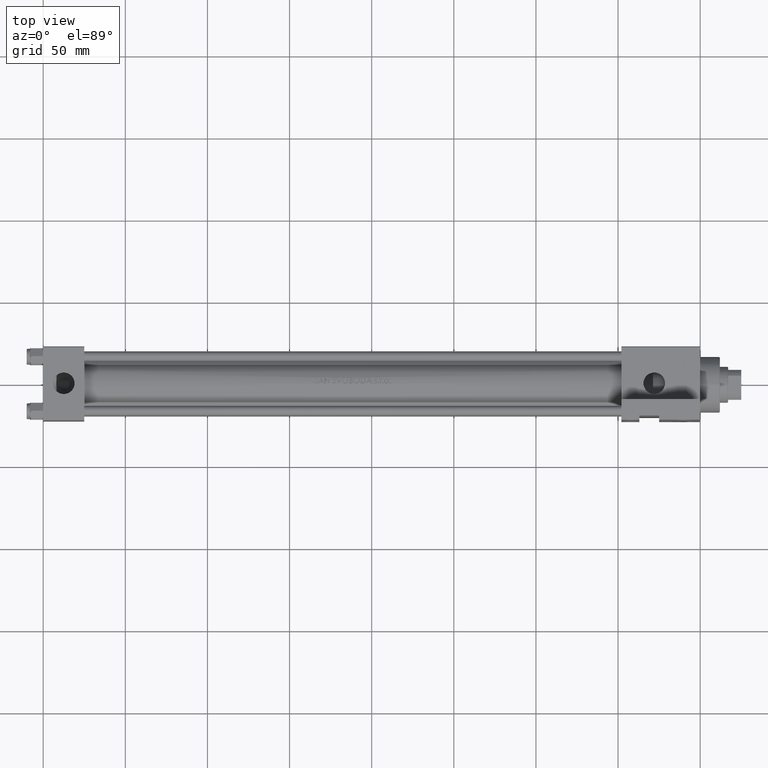
[diagram: clean part render]
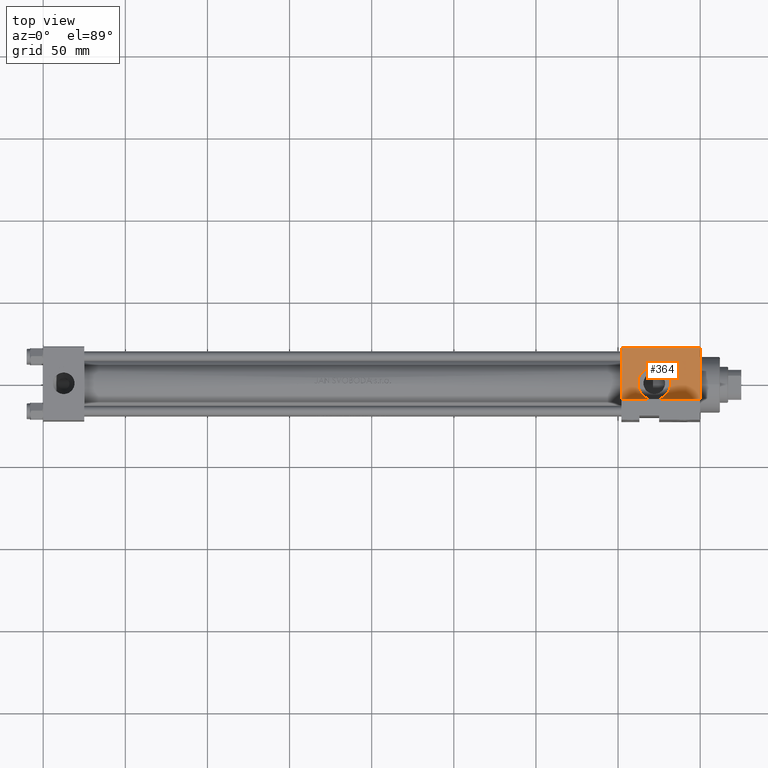
[diagram: same view with one face highlighted and labeled with its STEP entity id]
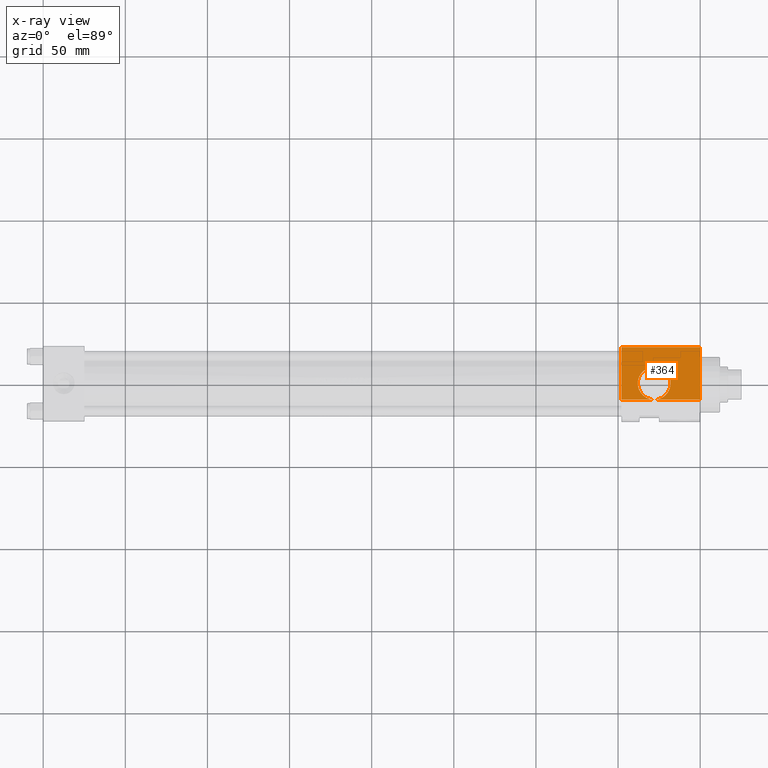
[diagram: x-ray of the same camera — body ghosted, the highlighted face saturated]
A machine part, top view. The second image highlights one B-rep face of the part: STEP entity #364.
The next image is the same camera in x-ray: the body ghosted, the highlighted face saturated — about 0% of this face is hidden behind the body in this view.
In plain terms, the highlighted planar face has unit normal (0, 0, -1).
Its self-contained STEP definition (entity closure, byte-faithful):
#364 = ADVANCED_FACE ( 'NONE', ( #38497 ), #27433, .F. ) ;
#668 = EDGE_CURVE ( 'NONE', #44928, #43540, #36544, .T. ) ;
#789 = CIRCLE ( 'NONE', #16976, 10.00000000000003553 ) ;
#1269 = VECTOR ( 'NONE', #33818, 1000.000000000000000 ) ;
#1439 = CARTESIAN_POINT ( 'NONE',  ( 352.0000000000000568, -22.49999999999999645, 21.99999999999999289 ) ) ;
#1755 = VECTOR ( 'NONE', #30564, 1000.000000000000000 ) ;
#4145 = EDGE_CURVE ( 'NONE', #14422, #45941, #19114, .T. ) ;
#5058 = ORIENTED_EDGE ( 'NONE', *, *, #11004, .T. ) ;
#8411 = VECTOR ( 'NONE', #42390, 1000.000000000000000 ) ;
#9057 = VERTEX_POINT ( 'NONE', #42427 ) ;
#11004 = EDGE_CURVE ( 'NONE', #44928, #9057, #16102, .T. ) ;
#11050 = ORIENTED_EDGE ( 'NONE', *, *, #19255, .T. ) ;
#11262 = CARTESIAN_POINT ( 'NONE',  ( 352.0000000000000568, -22.50000000000000000, -9.999999999999998224 ) ) ;
#12198 = CARTESIAN_POINT ( 'NONE',  ( 372.0000000000000568, -22.49999999999999645, 10.00000000000003553 ) ) ;
#14422 = VERTEX_POINT ( 'NONE', #1439 ) ;
#14876 = DIRECTION ( 'NONE',  ( 1.000000000000000000, -1.445602896647339656E-16, 0.000000000000000000 ) ) ;
#15362 = LINE ( 'NONE', #30091, #1755 ) ;
#15473 = CARTESIAN_POINT ( 'NONE',  ( 352.0000000000000568, -22.49999999999999645, 22.49999999999999289 ) ) ;
#15535 = DIRECTION ( 'NONE',  ( 0.000000000000000000, 0.000000000000000000, -1.000000000000000000 ) ) ;
#16102 = LINE ( 'NONE', #34678, #8411 ) ;
#16585 = ORIENTED_EDGE ( 'NONE', *, *, #44000, .F. ) ;
#16976 = AXIS2_PLACEMENT_3D ( 'NONE', #33439, #44998, #30533 ) ;
#17267 = AXIS2_PLACEMENT_3D ( 'NONE', #41645, #20422, #38029 ) ;
#17458 = CARTESIAN_POINT ( 'NONE',  ( 400.0000000000000000, -22.49999999999999645, 22.49999999999999289 ) ) ;
#17625 = VERTEX_POINT ( 'NONE', #24571 ) ;
#18413 = LINE ( 'NONE', #17458, #44183 ) ;
#18698 = CARTESIAN_POINT ( 'NONE',  ( 372.0000000000000568, -22.49999999999999645, 0.000000000000000000 ) ) ;
#18755 = LINE ( 'NONE', #11262, #34113 ) ;
#19114 = LINE ( 'NONE', #15473, #1269 ) ;
#19255 = EDGE_CURVE ( 'NONE', #45941, #44928, #18755, .T. ) ;
#19693 = CARTESIAN_POINT ( 'NONE',  ( 372.0000000000000568, -22.50000000000000355, -9.999999999999998224 ) ) ;
#20422 = DIRECTION ( 'NONE',  ( -0.000000000000000000, 1.000000000000000000, 0.000000000000000000 ) ) ;
#21745 = EDGE_CURVE ( 'NONE', #17625, #9057, #18413, .T. ) ;
#23046 = EDGE_LOOP ( 'NONE', ( #24856, #31674, #36788, #11050, #16585, #46667, #5058 ) ) ;
#24571 = CARTESIAN_POINT ( 'NONE',  ( 400.0000000000000000, -22.49999999999999645, 21.99999999999999289 ) ) ;
#24856 = ORIENTED_EDGE ( 'NONE', *, *, #21745, .F. ) ;
#25934 = DIRECTION ( 'NONE',  ( 0.000000000000000000, -1.000000000000000000, -8.673617379884036705E-17 ) ) ;
#27433 = PLANE ( 'NONE',  #17267 ) ;
#27766 = EDGE_CURVE ( 'NONE', #17625, #14422, #15362, .T. ) ;
#27842 = CARTESIAN_POINT ( 'NONE',  ( 352.0000000000000568, -22.50000000000000000, -9.999999999999998224 ) ) ;
#30091 = CARTESIAN_POINT ( 'NONE',  ( 400.0000000000000000, -22.49999999999999645, 21.99999999999999289 ) ) ;
#30533 = DIRECTION ( 'NONE',  ( 0.000000000000000000, 0.000000000000000000, -1.000000000000000000 ) ) ;
#30564 = DIRECTION ( 'NONE',  ( -1.000000000000000000, 0.000000000000000000, 0.000000000000000000 ) ) ;
#31674 = ORIENTED_EDGE ( 'NONE', *, *, #27766, .T. ) ;
#33123 = DIRECTION ( 'NONE',  ( 0.000000000000000000, 0.000000000000000000, -1.000000000000000000 ) ) ;
#33439 = CARTESIAN_POINT ( 'NONE',  ( 372.0000000000000568, -22.49999999999999645, 0.000000000000000000 ) ) ;
#33818 = DIRECTION ( 'NONE',  ( 0.000000000000000000, 0.000000000000000000, -1.000000000000000000 ) ) ;
#34113 = VECTOR ( 'NONE', #14876, 1000.000000000000000 ) ;
#34678 = CARTESIAN_POINT ( 'NONE',  ( 352.0000000000000568, -22.50000000000000000, -9.999999999999998224 ) ) ;
#36544 = CIRCLE ( 'NONE', #38841, 10.00000000000003553 ) ;
#36788 = ORIENTED_EDGE ( 'NONE', *, *, #4145, .T. ) ;
#38029 = DIRECTION ( 'NONE',  ( 0.000000000000000000, -0.000000000000000000, 1.000000000000000000 ) ) ;
#38497 = FACE_OUTER_BOUND ( 'NONE', #23046, .T. ) ;
#38841 = AXIS2_PLACEMENT_3D ( 'NONE', #18698, #25934, #15535 ) ;
#41645 = CARTESIAN_POINT ( 'NONE',  ( 400.0000000000000000, -22.49999999999999645, 22.49999999999999289 ) ) ;
#42390 = DIRECTION ( 'NONE',  ( 1.000000000000000000, -1.445602896647339656E-16, 0.000000000000000000 ) ) ;
#42427 = CARTESIAN_POINT ( 'NONE',  ( 400.0000000000000000, -22.49999999999999645, -9.999999999999980460 ) ) ;
#43540 = VERTEX_POINT ( 'NONE', #12198 ) ;
#44000 = EDGE_CURVE ( 'NONE', #43540, #44928, #789, .T. ) ;
#44183 = VECTOR ( 'NONE', #33123, 1000.000000000000000 ) ;
#44928 = VERTEX_POINT ( 'NONE', #19693 ) ;
#44998 = DIRECTION ( 'NONE',  ( 0.000000000000000000, -1.000000000000000000, -8.673617379884036705E-17 ) ) ;
#45941 = VERTEX_POINT ( 'NONE', #27842 ) ;
#46667 = ORIENTED_EDGE ( 'NONE', *, *, #668, .F. ) ;